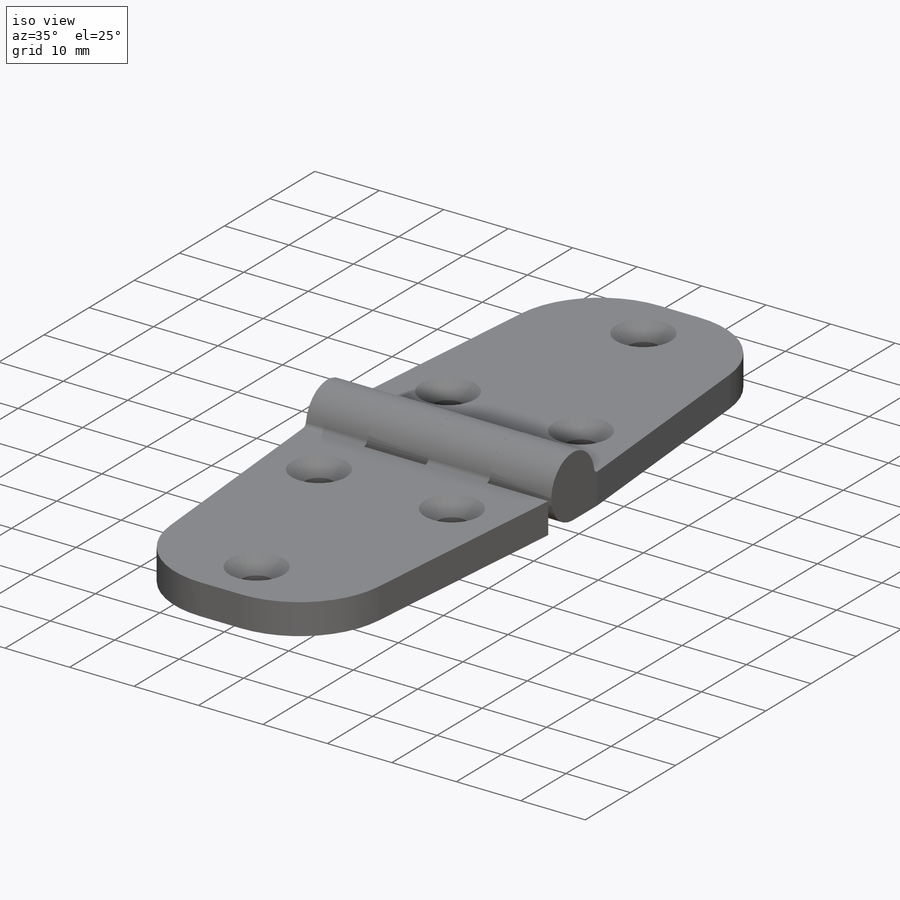
[diagram: iso view]
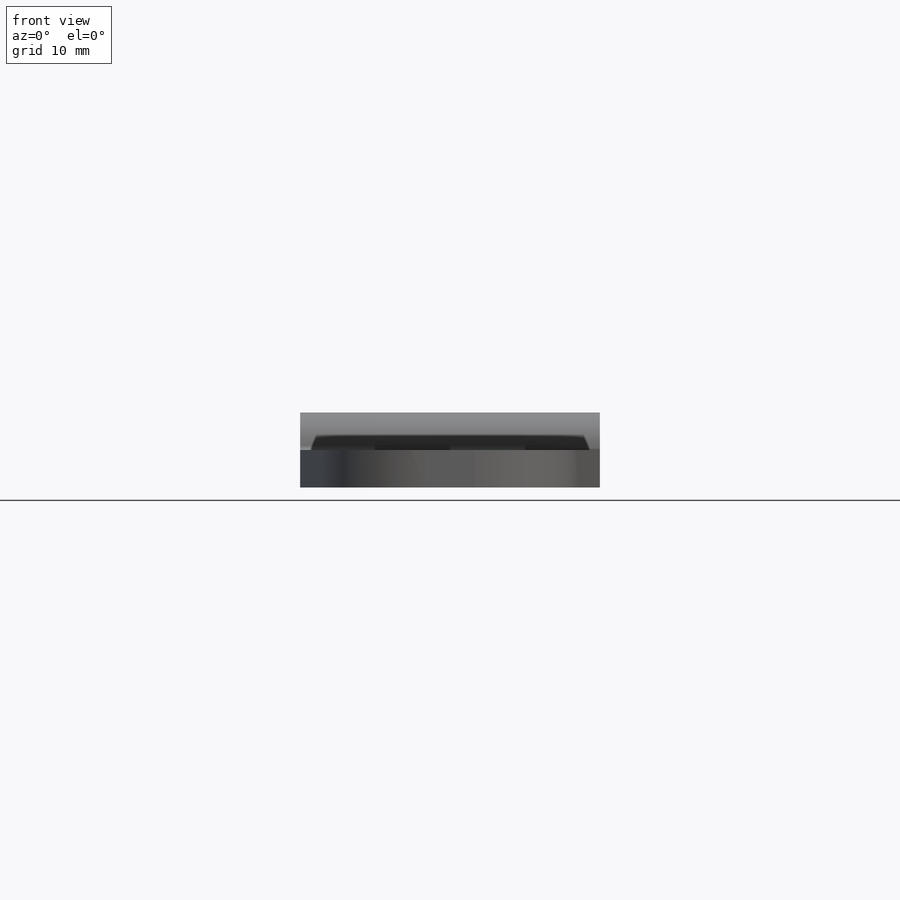
[diagram: front view]
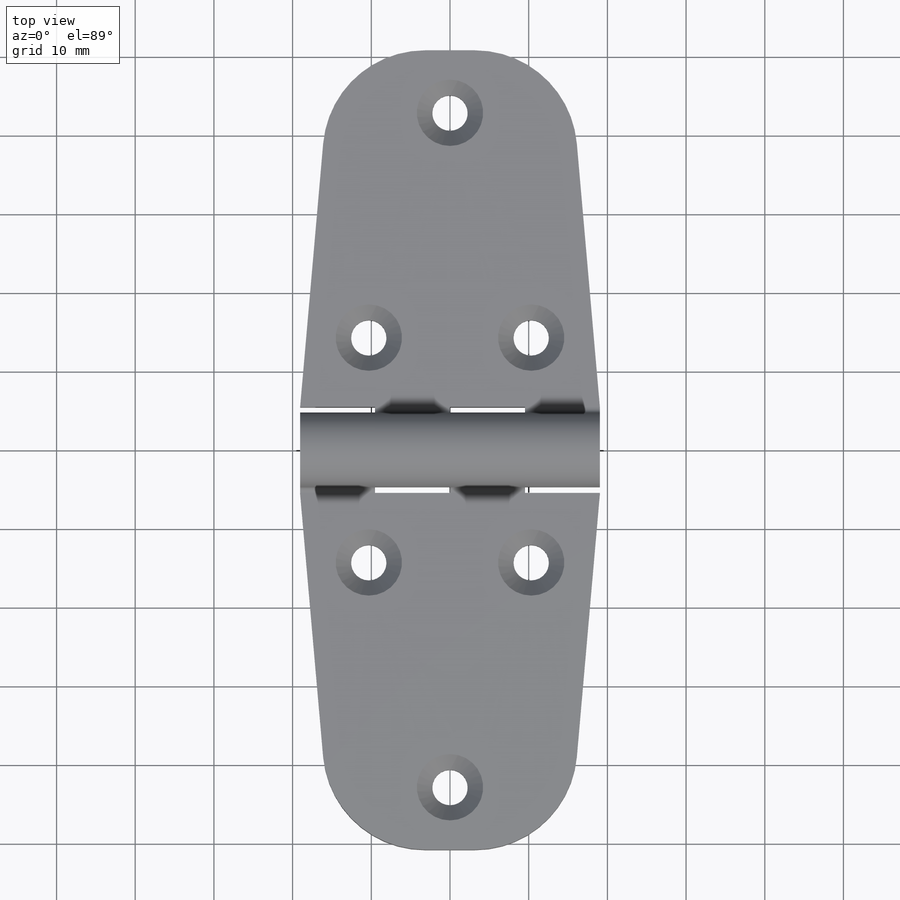
[diagram: top view]
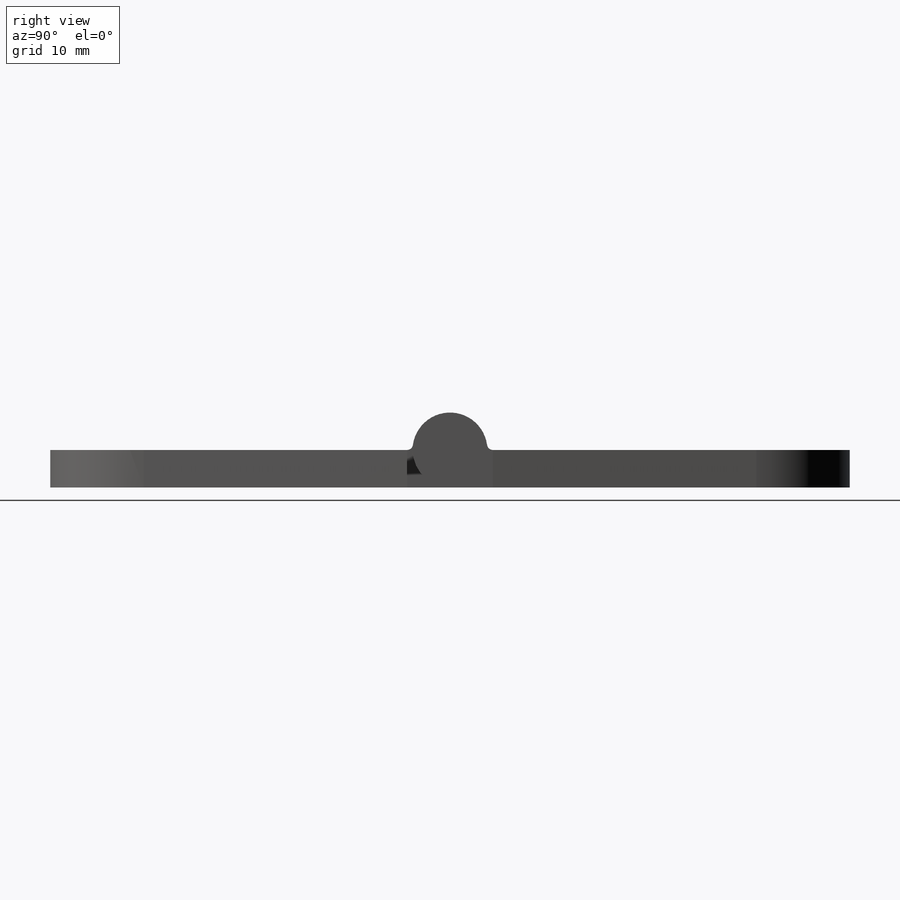
[diagram: right view]
SOLIDWORKS PART (.sldprt)
format: sldprt  version: not decoded by parser v0  size: 420,864 bytes
history: native  units: mm
features: sketch x10, cut_extrude x3, extrude x2, material x1, plane x1, revolve x1, hole x1 + 1 further entry (+13 scaffold rows collapsed)
feature tree (33):
  scaffold x13  (default folders/planes/origin — collapsed)
  material  "Material <not specified>"
  "Annotations"  RD1=50.799949mm RD2=50.799949mm RD3=7.9375mm
  sketch  "Sketch1"  dims[Pin Dia=3.175mm D2=6.223mm Kn Dia=9.525mm Th=4.7625mm A=50.8mm D1=3.1115mm]
  sketch  "Sketch2"  dims[D1=0.635mm]
  extrude  "Extrude1"  Depth=38.1mm
  sketch  "Sketch24"
  cut_extrude  "Cut-Extrude5"  [1 undecoded]
  sketch  "Sketch4"  dims[D1=0.635mm]
  extrude  "Extrude2"  [1 undecoded]
  sketch  "Sketch25"
  cut_extrude  "Cut-Extrude6"  [1 undecoded]
  plane  "Plane1"
  sketch  "Sketch7"  dims[D1=2.54mm]
  revolve  "Revolve1"  Angle=360deg
  sketch  "Sketch8"  dims[c1.D1=288.1884mm c2.D1=~6.702414deg c3.D1=~1.389062mm c3.D2=1.27mm c3.D3=25.4mm c3.D4=~25.385688mm c4.D1=1.27mm c4.D2=1.27mm c4.D3=1.27mm c4.D4=19.05mm c5.D1=~40.95658mm c6.D1=85.0deg c6.D2=6.35mm]
  cut_extrude  "Cut-Extrude4"  Depth=1056.132mm
  sketch  "Sketch9"  dims[c1.D1=~10.31875mm c1.D2=~133.07793mm c1.D3=~28.516699mm c1.D4=~37.343297mm c2.D2=~94.45625mm c2.D3=92.075mm c2.D4=~62.70625mm c2.D5=12.7mm c2.D6=34.925mm c2.D7=38.1mm c3.D5=12.7mm c3.D7=38.1mm c3.D8=~62.70625mm c3.D9=12.7mm c3.D10=34.925mm c3.D11=38.1mm c3.D1=41.275mm c3.D2=15.875mm c3.D3=15.875mm c3.D4=41.275mm c4.D1=~40.084375mm c4.D3=~7.342187mm c4.D2=42.8625mm c5.D3=~40.084375mm c5.D1=20.6375mm c5.D2=7.9375mm c6.D3=28.575mm]
  hole  "CSK for #8 Flat Head Machine Screw1"  Diameter=4.4958mm Depth=4.7625mm
  sketch  "Sketch14"
  sketch  "Sketch13"  dims[hole-wizard template sketch: 55 standard entries collapsed; hole parameters kept: c17.Thru Hole Depth=4.7625mm c17.Near C'Sink Dia.=8.4328mm c17.D4=~3.666174mm c17.Near C'Sink Angle=82.0deg]
decode coverage: 11 of 17 modeling features carry decoded parameters; 1 rows unclassified (native names shown)
note: ~ marks probable driven/reference dimensions
note: 3 parameter values undecoded
summary: no parameter record found for 3 features
note: suppression state not decoded; provenance and decode notes live in map.json
